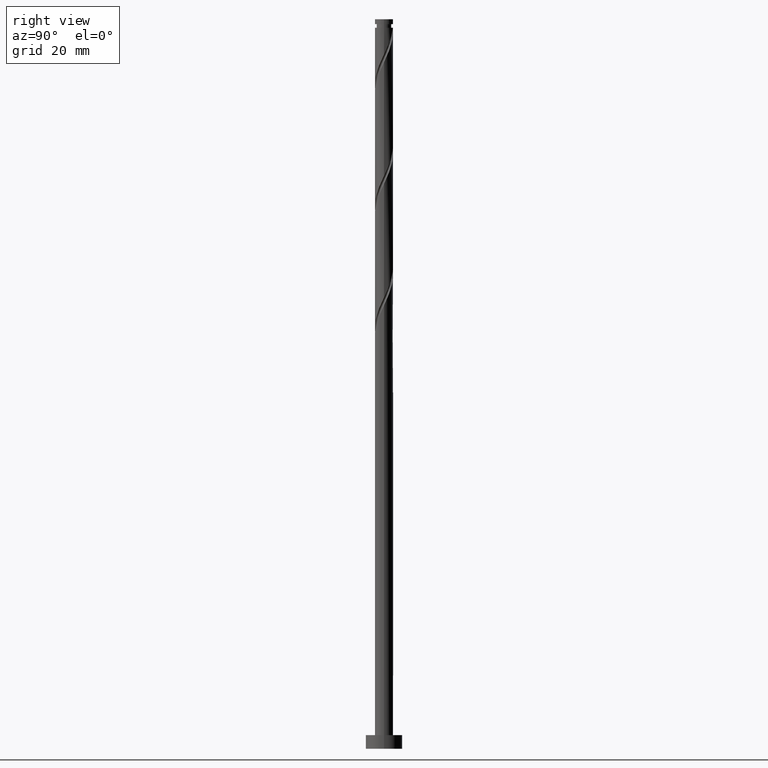
[diagram: clean part render]
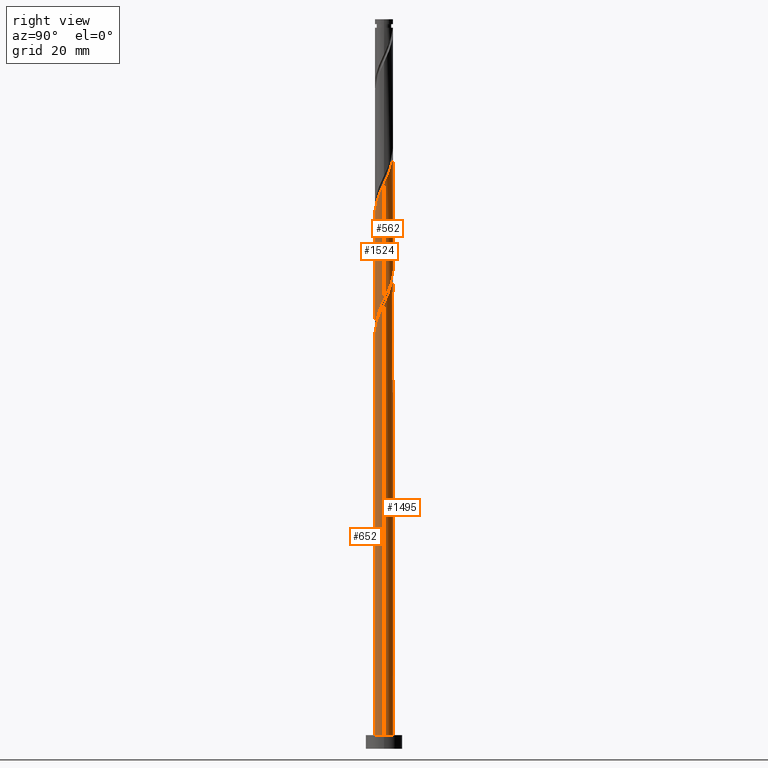
[diagram: same view with one multi-face feature highlighted, each face labeled with its STEP entity id]
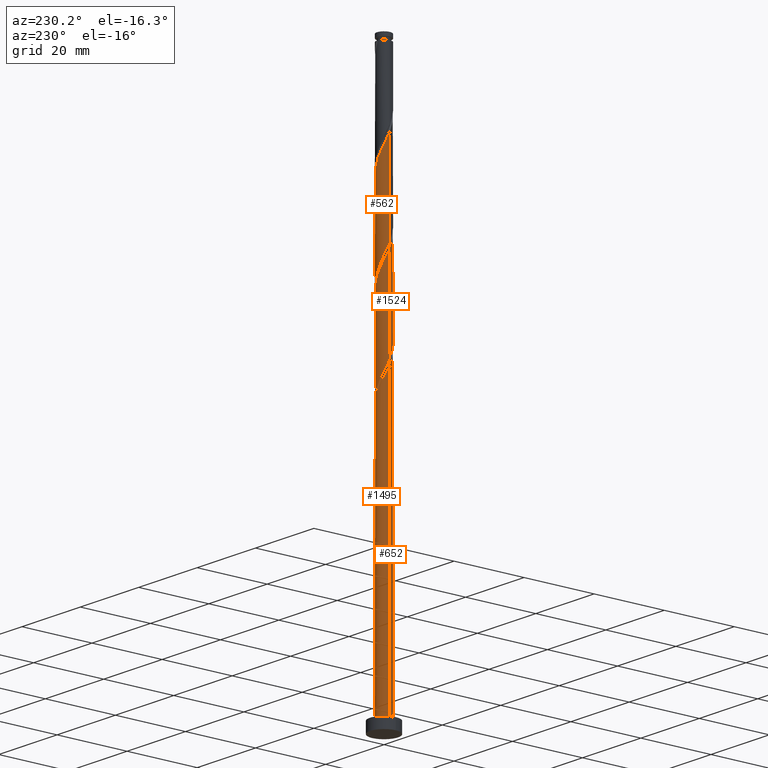
[diagram: same view with one multi-face feature highlighted, each face labeled with its STEP entity id]
A machine part, right view. The highlighted faces form ONE feature: a constant-radius fillet chain: 4 tangent blend faces with common blend radius 2 mm. The faces share edges in the B-rep.
A second angle (auxiliary view) of the same feature is appended — it is thin or edge-on in the first view.
Their STEP definitions:
[1] entity #652 (Cylinder):
#56 = CIRCLE ( 'NONE', #85, 2.000000000000000000 ) ;
#62 = CARTESIAN_POINT ( 'NONE',  ( -1.786663747202085428, -0.9436744384215550729, 85.99205870799292484 ) ) ;
#78 = CARTESIAN_POINT ( 'NONE',  ( -0.1703224295138030253, -1.992734370156877821, 90.23448295041721678 ) ) ;
#81 = ORIENTED_EDGE ( 'NONE', *, *, #115, .F. ) ;
#85 = AXIS2_PLACEMENT_3D ( 'NONE', #682, #354, #702 ) ;
#86 = CARTESIAN_POINT ( 'NONE',  ( 1.741900447066340618, -0.9827425057002959763, 95.08296779890204675 ) ) ;
#115 = EDGE_CURVE ( 'NONE', #834, #524, #1505, .T. ) ;
#150 = VECTOR ( 'NONE', #1386, 1000.000000000000000 ) ;
#223 = CARTESIAN_POINT ( 'NONE',  ( -1.220637884402356654, -1.584311571365225824, 87.81024052617476627 ) ) ;
#299 = VECTOR ( 'NONE', #1489, 1000.000000000000000 ) ;
#332 = AXIS2_PLACEMENT_3D ( 'NONE', #883, #1662, #516 ) ;
#354 = DIRECTION ( 'NONE',  ( 0.000000000000000000, 0.000000000000000000, 1.000000000000000000 ) ) ;
#398 = CARTESIAN_POINT ( 'NONE',  ( -2.000000000000000000, 0.000000000000000000, 3.000000000000000000 ) ) ;
#477 = CARTESIAN_POINT ( 'NONE',  ( -0.4568343776401065925, -1.968245701812304516, 89.62842234435655087 ) ) ;
#516 = DIRECTION ( 'NONE',  ( -1.000000000000000000, 0.000000000000000000, 0.000000000000000000 ) ) ;
#524 = VERTEX_POINT ( 'NONE', #575 ) ;
#565 = CARTESIAN_POINT ( 'NONE',  ( 2.000000000000003997, -0.2290578547702442069, 96.77785639693288999 ) ) ;
#575 = CARTESIAN_POINT ( 'NONE',  ( 2.000000000000000000, 2.449293598294706414E-16, 3.000000000000000000 ) ) ;
#581 = CARTESIAN_POINT ( 'NONE',  ( 0.3979949748426483414, -1.960000000000003517, 91.44660416253840651 ) ) ;
#588 = CARTESIAN_POINT ( 'NONE',  ( 1.948211798543803663, -0.4521844623765088889, 96.29508901102325069 ) ) ;
#652 = ADVANCED_FACE ( 'NONE', ( #1021 ), #1137, .T. ) ;
#682 = CARTESIAN_POINT ( 'NONE',  ( 0.000000000000000000, 0.000000000000000000, 3.000000000000000000 ) ) ;
#692 = CARTESIAN_POINT ( 'NONE',  ( -0.9928482695149692949, -1.759812803970230322, 88.41630113223534693 ) ) ;
#702 = DIRECTION ( 'NONE',  ( 1.000000000000000000, 0.000000000000000000, 0.000000000000000000 ) ) ;
#712 = CARTESIAN_POINT ( 'NONE',  ( 1.188337955536409529, -1.634179211325361702, 93.26478598072021953 ) ) ;
#778 = CARTESIAN_POINT ( 'NONE',  ( -1.883409435608319749, -0.6728810428757548978, 85.38599810193234418 ) ) ;
#834 = VERTEX_POINT ( 'NONE', #1186 ) ;
#841 = CARTESIAN_POINT ( 'NONE',  ( 0.1161895186125003476, -2.017223038501451349, 90.84054355647778323 ) ) ;
#847 = CARTESIAN_POINT ( 'NONE',  ( 0.6798004310727963073, -1.902776961498555464, 92.05266476859904401 ) ) ;
#882 = ORIENTED_EDGE ( 'NONE', *, *, #1082, .T. ) ;
#883 = CARTESIAN_POINT ( 'NONE',  ( 0.000000000000000000, 0.000000000000000000, 160.0000000000000000 ) ) ;
#976 = CARTESIAN_POINT ( 'NONE',  ( 1.600603406160406639, -1.233189980288575738, 94.47690719284145189 ) ) ;
#977 =( BOUNDED_CURVE ( )  B_SPLINE_CURVE ( 2, ( #1029, #1285, #1545, #1537, #778, #62, #1361, #1345, #223, #692, #1618, #477, #78, #841, #581, #847, #1199, #712, #1587, #976, #86, #983, #588, #565, #1334 ),
 .UNSPECIFIED., .F., .T. ) 
 B_SPLINE_CURVE_WITH_KNOTS ( ( 3, 2, 2, 2, 2, 2, 2, 2, 2, 2, 2, 2, 3 ),
 ( 0.05452521624175128701, 0.05681818181818176772, 0.06818181818181823228, 0.07954545454545458583, 0.09090909090909093937, 0.1022727272727272929, 0.1136363636363636465, 0.1250000000000000000, 0.1363636363636363535, 0.1477272727272727071, 0.1590909090909090606, 0.1704545454545454142, 0.1795252162417513841 ),
 .UNSPECIFIED. ) 
 CURVE ( )  GEOMETRIC_REPRESENTATION_ITEM ( )  RATIONAL_B_SPLINE_CURVE ( ( 0.9061101570135694505, 0.9072237824201516698, 0.9090909090909291557, 0.8998376744372313940, 0.9090909090909291557, 0.8998376744372313940, 0.9090909090909291557, 0.8998376744372313940, 0.9090909090909291557, 0.8998376744372313940, 0.9090909090909291557, 0.8998376744372313940, 0.9090909090909291557, 0.8998376744372313940, 0.9090909090909291557, 0.8998376744372313940, 0.9090909090909291557, 0.8998376744372313940, 0.9090909090909291557, 0.8998376744372313940, 0.9090909090909291557, 0.8998376744372313940, 0.9090909090909291557, 0.9017048011080087688, 0.9061101570135696726 ) ) 
 REPRESENTATION_ITEM ( '' )  );
#983 = CARTESIAN_POINT ( 'NONE',  ( 1.883197487972274375, -0.7322950311120153266, 95.68902840496264162 ) ) ;
#1002 = EDGE_CURVE ( 'NONE', #1022, #834, #977, .T. ) ;
#1021 = FACE_OUTER_BOUND ( 'NONE', #1119, .T. ) ;
#1022 = VERTEX_POINT ( 'NONE', #1231 ) ;
#1029 = CARTESIAN_POINT ( 'NONE',  ( -2.000000000000003553, -1.271329759797182417E-15, 83.93048301657087507 ) ) ;
#1082 = EDGE_CURVE ( 'NONE', #1316, #524, #56, .T. ) ;
#1100 = CARTESIAN_POINT ( 'NONE',  ( -2.000000000000000000, 0.000000000000000000, 160.0000000000000000 ) ) ;
#1102 = EDGE_CURVE ( 'NONE', #1022, #1316, #1627, .T. ) ;
#1119 = EDGE_LOOP ( 'NONE', ( #81, #1393, #1370, #882 ) ) ;
#1121 = CARTESIAN_POINT ( 'NONE',  ( 2.000000000000000000, 2.449293598294706414E-16, 160.0000000000000000 ) ) ;
#1137 = CYLINDRICAL_SURFACE ( 'NONE', #332, 2.000000000000000000 ) ;
#1186 = CARTESIAN_POINT ( 'NONE',  ( 2.000000000000003553, 1.181588835576204861E-15, 97.26381634990418945 ) ) ;
#1199 = CARTESIAN_POINT ( 'NONE',  ( 0.9340691933046022521, -1.768478086411958472, 92.65872537465965308 ) ) ;
#1231 = CARTESIAN_POINT ( 'NONE',  ( -2.000000000000003553, -1.271329759797182417E-15, 83.93048301657087507 ) ) ;
#1285 = CARTESIAN_POINT ( 'NONE',  ( -2.000000000000003553, -0.05755105304764444180, 84.05258102128908604 ) ) ;
#1316 = VERTEX_POINT ( 'NONE', #398 ) ;
#1334 = CARTESIAN_POINT ( 'NONE',  ( 2.000000000000003553, 1.181588835576204861E-15, 97.26381634990418945 ) ) ;
#1345 = CARTESIAN_POINT ( 'NONE',  ( -1.448427499289743903, -1.408810338760221992, 87.20417992011415720 ) ) ;
#1361 = CARTESIAN_POINT ( 'NONE',  ( -1.617545623245915110, -1.176242388590888366, 86.59811931405354812 ) ) ;
#1370 = ORIENTED_EDGE ( 'NONE', *, *, #1102, .T. ) ;
#1386 = DIRECTION ( 'NONE',  ( -0.000000000000000000, -0.000000000000000000, -1.000000000000000000 ) ) ;
#1393 = ORIENTED_EDGE ( 'NONE', *, *, #1002, .F. ) ;
#1489 = DIRECTION ( 'NONE',  ( -0.000000000000000000, -0.000000000000000000, -1.000000000000000000 ) ) ;
#1505 = LINE ( 'NONE', #1121, #150 ) ;
#1537 = CARTESIAN_POINT ( 'NONE',  ( -1.980155124014554291, -0.4020876473299553888, 84.77993749587173511 ) ) ;
#1545 = CARTESIAN_POINT ( 'NONE',  ( -1.996690616564943399, -0.1150068768444766354, 84.17387688981115446 ) ) ;
#1587 = CARTESIAN_POINT ( 'NONE',  ( 1.394470680848408417, -1.433684595806967943, 93.87084658678084281 ) ) ;
#1618 = CARTESIAN_POINT ( 'NONE',  ( -0.7248413235775381658, -1.864029252891266752, 89.02236173829597021 ) ) ;
#1627 = LINE ( 'NONE', #1100, #299 ) ;
#1662 = DIRECTION ( 'NONE',  ( -0.000000000000000000, -0.000000000000000000, -1.000000000000000000 ) ) ;
[2] entity #1495 (Cylinder):
#10 = ORIENTED_EDGE ( 'NONE', *, *, #914, .T. ) ;
#18 = CARTESIAN_POINT ( 'NONE',  ( 1.220637884402356654, 1.584311571365226490, 101.1435738595080949 ) ) ;
#42 = VERTEX_POINT ( 'NONE', #1114 ) ;
#115 = EDGE_CURVE ( 'NONE', #834, #524, #1505, .T. ) ;
#136 = CARTESIAN_POINT ( 'NONE',  ( -1.980155124014550738, 0.4020876473299552223, 84.77993749587173511 ) ) ;
#150 = VECTOR ( 'NONE', #1386, 1000.000000000000000 ) ;
#151 = CARTESIAN_POINT ( 'NONE',  ( -0.9340691933046029183, 1.768478086411958250, 105.9920587079929533 ) ) ;
#177 = CARTESIAN_POINT ( 'NONE',  ( -1.188337955536409529, 1.634179211325361702, 79.93145264738686251 ) ) ;
#180 = CARTESIAN_POINT ( 'NONE',  ( -0.3979949748426481193, 1.960000000000003517, 104.7799374958717635 ) ) ;
#201 = EDGE_CURVE ( 'NONE', #1649, #985, #1016, .T. ) ;
#209 = ORIENTED_EDGE ( 'NONE', *, *, #115, .T. ) ;
#275 = CARTESIAN_POINT ( 'NONE',  ( 0.000000000000000000, 0.000000000000000000, 3.000000000000000000 ) ) ;
#285 = CARTESIAN_POINT ( 'NONE',  ( 1.883409435608319749, 0.6728810428757547868, 98.71933143526568699 ) ) ;
#289 = CARTESIAN_POINT ( 'NONE',  ( -0.1161895186125000284, 2.017223038501451349, 104.1738768898111687 ) ) ;
#297 = CARTESIAN_POINT ( 'NONE',  ( -1.394470680848408417, 1.433684595806967943, 107.2041799201141856 ) ) ;
#299 = VECTOR ( 'NONE', #1489, 1000.000000000000000 ) ;
#304 = DIRECTION ( 'NONE',  ( -0.000000000000000000, -0.000000000000000000, -1.000000000000000000 ) ) ;
#314 = CARTESIAN_POINT ( 'NONE',  ( -1.741900447066340840, 0.9827425057002956432, 81.74963446556871816 ) ) ;
#317 = CARTESIAN_POINT ( 'NONE',  ( 1.996690616564943399, 0.1150068768444764550, 97.50721022314446884 ) ) ;
#345 = CARTESIAN_POINT ( 'NONE',  ( 0.3979949748426486189, 1.959999999999999964, 78.11327082920506371 ) ) ;
#373 = CARTESIAN_POINT ( 'NONE',  ( 0.1161895186125005142, 2.017223038501447796, 78.71933143526567278 ) ) ;
#378 = CARTESIAN_POINT ( 'NONE',  ( -0.9928482695149674075, 1.759812803970227657, 81.14357385950808066 ) ) ;
#398 = CARTESIAN_POINT ( 'NONE',  ( -2.000000000000000000, 0.000000000000000000, 3.000000000000000000 ) ) ;
#400 = CARTESIAN_POINT ( 'NONE',  ( -0.7248413235775363894, 1.864029252891264754, 80.53751325344750001 ) ) ;
#422 = CARTESIAN_POINT ( 'NONE',  ( 1.980155124014554291, 0.4020876473299551113, 98.11327082920509213 ) ) ;
#426 = DIRECTION ( 'NONE',  ( -1.000000000000000000, 0.000000000000000000, 0.000000000000000000 ) ) ;
#434 = DIRECTION ( 'NONE',  ( 0.000000000000000000, -0.000000000000000000, -1.000000000000000000 ) ) ;
#445 = CARTESIAN_POINT ( 'NONE',  ( -1.600603406160406639, 1.233189980288575516, 107.8102405261747663 ) ) ;
#462 = EDGE_CURVE ( 'NONE', #834, #1649, #1601, .T. ) ;
#464 = CIRCLE ( 'NONE', #1012, 2.000000000000000000 ) ;
#478 = CARTESIAN_POINT ( 'NONE',  ( -2.000000000000000000, 0.000000000000000000, 160.0000000000000000 ) ) ;
#488 = CARTESIAN_POINT ( 'NONE',  ( -2.000000000000000000, 0.05755105304764594060, 85.50729397045442681 ) ) ;
#504 = EDGE_LOOP ( 'NONE', ( #920, #209, #752, #1004, #783, #10, #630, #1144 ) ) ;
#521 = CARTESIAN_POINT ( 'NONE',  ( -1.948211798543803219, 0.4521844623765091109, 82.96175567768992209 ) ) ;
#524 = VERTEX_POINT ( 'NONE', #575 ) ;
#531 = AXIS2_PLACEMENT_3D ( 'NONE', #1551, #304, #896 ) ;
#532 = CARTESIAN_POINT ( 'NONE',  ( -1.883197487972274375, 0.7322950311120156597, 109.0223617382959986 ) ) ;
#559 = CARTESIAN_POINT ( 'NONE',  ( 0.7248413235775374996, 1.864029252891266975, 102.3556950716293414 ) ) ;
#575 = CARTESIAN_POINT ( 'NONE',  ( 2.000000000000000000, 2.449293598294706414E-16, 3.000000000000000000 ) ) ;
#585 = CIRCLE ( 'NONE', #795, 2.000000000000000000 ) ;
#627 =( BOUNDED_CURVE ( )  B_SPLINE_CURVE ( 2, ( #1520, #488, #1260, #136, #1142, #1528, #1504, #1120, #1404, #378, #400, #744, #1653, #373, #1378 ),
 .UNSPECIFIED., .F., .T. ) 
 B_SPLINE_CURVE_WITH_KNOTS ( ( 3, 2, 2, 2, 2, 2, 2, 3 ),
 ( 0.9295252162417513286, 0.9318181818181817677, 0.9431818181818182323, 0.9545454545454545858, 0.9659090909090909394, 0.9772727272727272929, 0.9886363636363636465, 1.000000000000000000 ),
 .UNSPECIFIED. ) 
 CURVE ( )  GEOMETRIC_REPRESENTATION_ITEM ( )  RATIONAL_B_SPLINE_CURVE ( ( 0.9061101570135631222, 0.9072237824201453416, 0.9090909090909228274, 0.8998376744372251768, 0.9090909090909228274, 0.8998376744372251768, 0.9090909090909228274, 0.8998376744372251768, 0.9090909090909228274, 0.8998376744372251768, 0.9090909090909228274, 0.8998376744372251768, 0.9090909090909228274, 0.8998376744372251768, 0.9090909090909228274 ) ) 
 REPRESENTATION_ITEM ( '' )  );
#630 = ORIENTED_EDGE ( 'NONE', *, *, #728, .F. ) ;
#641 = CARTESIAN_POINT ( 'NONE',  ( -2.000000000000003553, 0.2290578547702467049, 83.44452306359956140 ) ) ;
#649 = CARTESIAN_POINT ( 'NONE',  ( -2.000000000000003553, -1.271329759797182417E-15, 110.5971496832375038 ) ) ;
#658 = CARTESIAN_POINT ( 'NONE',  ( 2.000000000000003109, 0.05755105304764673163, 97.38591435462238621 ) ) ;
#676 = CARTESIAN_POINT ( 'NONE',  ( -0.3979949748426480638, 1.960000000000003517, 78.11327082920506371 ) ) ;
#698 = EDGE_CURVE ( 'NONE', #524, #1316, #464, .T. ) ;
#728 = EDGE_CURVE ( 'NONE', #985, #1287, #627, .T. ) ;
#744 = CARTESIAN_POINT ( 'NONE',  ( -0.4568343776401056489, 1.968245701812301407, 79.93145264738686251 ) ) ;
#752 = ORIENTED_EDGE ( 'NONE', *, *, #698, .T. ) ;
#761 = DIRECTION ( 'NONE',  ( 0.000000000000000000, 0.000000000000000000, 1.000000000000000000 ) ) ;
#769 = DIRECTION ( 'NONE',  ( 1.000000000000000000, 0.000000000000000000, 0.000000000000000000 ) ) ;
#783 = ORIENTED_EDGE ( 'NONE', *, *, #980, .F. ) ;
#787 = CARTESIAN_POINT ( 'NONE',  ( -2.000000000000003553, -1.271329759797182417E-15, 110.5971496832375180 ) ) ;
#795 = AXIS2_PLACEMENT_3D ( 'NONE', #1447, #434, #426 ) ;
#797 = CARTESIAN_POINT ( 'NONE',  ( 2.000000000000003553, 1.181588835576204861E-15, 97.26381634990418945 ) ) ;
#799 =( BOUNDED_CURVE ( )  B_SPLINE_CURVE ( 2, ( #676, #1163, #804, #177, #1577, #946, #314, #1322, #521, #641, #908 ),
 .UNSPECIFIED., .F., .T. ) 
 B_SPLINE_CURVE_WITH_KNOTS ( ( 3, 2, 2, 2, 2, 3 ),
 ( 0.000000000000000000, 0.01136363636363635528, 0.02272727272727271056, 0.03409090909090906063, 0.04545454545454542111, 0.05452521624175128007 ),
 .UNSPECIFIED. ) 
 CURVE ( )  GEOMETRIC_REPRESENTATION_ITEM ( )  RATIONAL_B_SPLINE_CURVE ( ( 0.9090909090909291557, 0.8998376744372313940, 0.9090909090909291557, 0.8998376744372313940, 0.9090909090909291557, 0.8998376744372313940, 0.9090909090909291557, 0.8998376744372313940, 0.9090909090909291557, 0.9017048011080088799, 0.9061101570135694505 ) ) 
 REPRESENTATION_ITEM ( '' )  );
#804 = CARTESIAN_POINT ( 'NONE',  ( -0.9340691933046029183, 1.768478086411958250, 79.32539204132628186 ) ) ;
#808 = CARTESIAN_POINT ( 'NONE',  ( -0.6798004310727966404, 1.902776961498555020, 105.3859981019323726 ) ) ;
#818 = CARTESIAN_POINT ( 'NONE',  ( -2.000000000000003997, 0.2290578547702443457, 110.1111897302662186 ) ) ;
#834 = VERTEX_POINT ( 'NONE', #1186 ) ;
#896 = DIRECTION ( 'NONE',  ( -1.000000000000000000, 0.000000000000000000, 0.000000000000000000 ) ) ;
#908 = CARTESIAN_POINT ( 'NONE',  ( -2.000000000000003553, -1.271329759797182417E-15, 83.93048301657087507 ) ) ;
#914 = EDGE_CURVE ( 'NONE', #42, #1287, #585, .T. ) ;
#920 = ORIENTED_EDGE ( 'NONE', *, *, #462, .F. ) ;
#927 = CARTESIAN_POINT ( 'NONE',  ( 1.448427499289744791, 1.408810338760221326, 100.5375132534475142 ) ) ;
#946 = CARTESIAN_POINT ( 'NONE',  ( -1.600603406160406639, 1.233189980288575516, 81.14357385950812329 ) ) ;
#980 = EDGE_CURVE ( 'NONE', #42, #1022, #799, .T. ) ;
#985 = VERTEX_POINT ( 'NONE', #1155 ) ;
#1004 = ORIENTED_EDGE ( 'NONE', *, *, #1102, .F. ) ;
#1012 = AXIS2_PLACEMENT_3D ( 'NONE', #275, #761, #769 ) ;
#1016 = LINE ( 'NONE', #478, #1109 ) ;
#1022 = VERTEX_POINT ( 'NONE', #1231 ) ;
#1070 = CARTESIAN_POINT ( 'NONE',  ( -1.948211798543803219, 0.4521844623765091109, 109.6284223443565935 ) ) ;
#1100 = CARTESIAN_POINT ( 'NONE',  ( -2.000000000000000000, 0.000000000000000000, 160.0000000000000000 ) ) ;
#1102 = EDGE_CURVE ( 'NONE', #1022, #1316, #1627, .T. ) ;
#1109 = VECTOR ( 'NONE', #1450, 1000.000000000000000 ) ;
#1114 = CARTESIAN_POINT ( 'NONE',  ( -0.3979949748426480638, 1.960000000000003517, 78.11327082920506371 ) ) ;
#1120 = CARTESIAN_POINT ( 'NONE',  ( -1.448427499289741460, 1.408810338760220215, 82.35569507162931302 ) ) ;
#1121 = CARTESIAN_POINT ( 'NONE',  ( 2.000000000000000000, 2.449293598294706414E-16, 160.0000000000000000 ) ) ;
#1142 = CARTESIAN_POINT ( 'NONE',  ( -1.883409435608316418, 0.6728810428757544537, 84.17387688981112603 ) ) ;
#1144 = ORIENTED_EDGE ( 'NONE', *, *, #201, .F. ) ;
#1155 = CARTESIAN_POINT ( 'NONE',  ( -2.000000000000000000, 1.832210536178305115E-15, 85.62939197517262357 ) ) ;
#1163 = CARTESIAN_POINT ( 'NONE',  ( -0.6798004310727966404, 1.902776961498555020, 78.71933143526568699 ) ) ;
#1186 = CARTESIAN_POINT ( 'NONE',  ( 2.000000000000003553, 1.181588835576204861E-15, 97.26381634990418945 ) ) ;
#1231 = CARTESIAN_POINT ( 'NONE',  ( -2.000000000000003553, -1.271329759797182417E-15, 83.93048301657087507 ) ) ;
#1260 = CARTESIAN_POINT ( 'NONE',  ( -1.996690616564939846, 0.1150068768444770378, 85.38599810193235840 ) ) ;
#1286 = CARTESIAN_POINT ( 'NONE',  ( 0.9928482695149684067, 1.759812803970230766, 101.7496344655687182 ) ) ;
#1287 = VERTEX_POINT ( 'NONE', #345 ) ;
#1303 = CARTESIAN_POINT ( 'NONE',  ( 1.617545623245915332, 1.176242388590887922, 99.93145264738689093 ) ) ;
#1316 = VERTEX_POINT ( 'NONE', #398 ) ;
#1322 = CARTESIAN_POINT ( 'NONE',  ( -1.883197487972274375, 0.7322950311120156597, 82.35569507162932723 ) ) ;
#1378 = CARTESIAN_POINT ( 'NONE',  ( 0.3979949748426486189, 1.959999999999999964, 78.11327082920506371 ) ) ;
#1386 = DIRECTION ( 'NONE',  ( -0.000000000000000000, -0.000000000000000000, -1.000000000000000000 ) ) ;
#1403 = CYLINDRICAL_SURFACE ( 'NONE', #531, 2.000000000000000000 ) ;
#1404 = CARTESIAN_POINT ( 'NONE',  ( -1.220637884402354434, 1.584311571365224047, 81.74963446556870394 ) ) ;
#1421 = CARTESIAN_POINT ( 'NONE',  ( -1.741900447066340840, 0.9827425057002956432, 108.4163011322353611 ) ) ;
#1432 = CARTESIAN_POINT ( 'NONE',  ( 0.4568343776401068701, 1.968245701812304072, 102.9617556776899505 ) ) ;
#1442 = CARTESIAN_POINT ( 'NONE',  ( 1.786663747202085650, 0.9436744384215544068, 99.32539204132629607 ) ) ;
#1447 = CARTESIAN_POINT ( 'NONE',  ( 0.000000000000000000, 0.000000000000000000, 78.11327082920506371 ) ) ;
#1450 = DIRECTION ( 'NONE',  ( -0.000000000000000000, -0.000000000000000000, -1.000000000000000000 ) ) ;
#1489 = DIRECTION ( 'NONE',  ( -0.000000000000000000, -0.000000000000000000, -1.000000000000000000 ) ) ;
#1495 = ADVANCED_FACE ( 'NONE', ( #1575 ), #1403, .T. ) ;
#1504 = CARTESIAN_POINT ( 'NONE',  ( -1.617545623245911779, 1.176242388590886812, 82.96175567768990788 ) ) ;
#1505 = LINE ( 'NONE', #1121, #150 ) ;
#1520 = CARTESIAN_POINT ( 'NONE',  ( -2.000000000000000000, 1.832210536178305115E-15, 85.62939197517262357 ) ) ;
#1528 = CARTESIAN_POINT ( 'NONE',  ( -1.786663747202081876, 0.9436744384215539627, 83.56781628375054538 ) ) ;
#1547 = CARTESIAN_POINT ( 'NONE',  ( 0.1703224295138033029, 1.992734370156877821, 103.5678162837505312 ) ) ;
#1551 = CARTESIAN_POINT ( 'NONE',  ( 0.000000000000000000, 0.000000000000000000, 160.0000000000000000 ) ) ;
#1575 = FACE_OUTER_BOUND ( 'NONE', #504, .T. ) ;
#1577 = CARTESIAN_POINT ( 'NONE',  ( -1.394470680848408417, 1.433684595806967943, 80.53751325344748579 ) ) ;
#1580 = CARTESIAN_POINT ( 'NONE',  ( -1.188337955536409529, 1.634179211325361702, 106.5981193140535623 ) ) ;
#1601 =( BOUNDED_CURVE ( )  B_SPLINE_CURVE ( 2, ( #797, #658, #317, #422, #285, #1442, #1303, #927, #18, #1286, #559, #1432, #1547, #289, #180, #808, #151, #1580, #297, #445, #1421, #532, #1070, #818, #787 ),
 .UNSPECIFIED., .F., .T. ) 
 B_SPLINE_CURVE_WITH_KNOTS ( ( 3, 2, 2, 2, 2, 2, 2, 2, 2, 2, 2, 2, 3 ),
 ( 0.1795252162417513841, 0.1818181818181817677, 0.1931818181818182323, 0.2045454545454545858, 0.2159090909090909394, 0.2272727272727272929, 0.2386363636363636465, 0.2500000000000000000, 0.2613636363636363535, 0.2727272727272727071, 0.2840909090909090606, 0.2954545454545454142, 0.3045252162417513841 ),
 .UNSPECIFIED. ) 
 CURVE ( )  GEOMETRIC_REPRESENTATION_ITEM ( )  RATIONAL_B_SPLINE_CURVE ( ( 0.9061101570135696726, 0.9072237824201517808, 0.9090909090909291557, 0.8998376744372313940, 0.9090909090909291557, 0.8998376744372313940, 0.9090909090909291557, 0.8998376744372313940, 0.9090909090909291557, 0.8998376744372313940, 0.9090909090909291557, 0.8998376744372313940, 0.9090909090909291557, 0.8998376744372313940, 0.9090909090909291557, 0.8998376744372313940, 0.9090909090909291557, 0.8998376744372313940, 0.9090909090909291557, 0.8998376744372313940, 0.9090909090909291557, 0.8998376744372313940, 0.9090909090909291557, 0.9017048011080087688, 0.9061101570135696726 ) ) 
 REPRESENTATION_ITEM ( '' )  );
#1627 = LINE ( 'NONE', #1100, #299 ) ;
#1649 = VERTEX_POINT ( 'NONE', #649 ) ;
#1653 = CARTESIAN_POINT ( 'NONE',  ( -0.1703224295138024424, 1.992734370156874713, 79.32539204132629607 ) ) ;
[3] entity #1524 (Cylinder):
#79 = CARTESIAN_POINT ( 'NONE',  ( -1.188337955536407531, -1.634179211325358594, 89.62842234435659350 ) ) ;
#88 = CARTESIAN_POINT ( 'NONE',  ( 0.9340691933046022521, -1.768478086411958472, 119.3253920413262961 ) ) ;
#96 = CARTESIAN_POINT ( 'NONE',  ( -0.9928482695149692949, -1.759812803970230322, 115.0829677989020468 ) ) ;
#103 = CARTESIAN_POINT ( 'NONE',  ( -0.3979949748426485634, -1.959999999999999964, 91.44660416253843493 ) ) ;
#152 = EDGE_LOOP ( 'NONE', ( #429, #1340, #1567, #754 ) ) ;
#169 = CARTESIAN_POINT ( 'NONE',  ( 1.996690616564939402, -0.1150068768444773015, 98.71933143526570120 ) ) ;
#189 = CARTESIAN_POINT ( 'NONE',  ( 1.999999999999999112, -0.05755105304764908392, 98.84062730378772699 ) ) ;
#201 = EDGE_CURVE ( 'NONE', #1649, #985, #1016, .T. ) ;
#207 = CARTESIAN_POINT ( 'NONE',  ( 0.3979949748426483414, -1.960000000000003517, 118.1132708292051063 ) ) ;
#215 = CARTESIAN_POINT ( 'NONE',  ( -2.000000000000003109, -0.05755105304764687041, 110.7192476879557290 ) ) ;
#232 = CARTESIAN_POINT ( 'NONE',  ( -0.9340691933046016970, -1.768478086411955141, 90.23448295041720257 ) ) ;
#330 = CARTESIAN_POINT ( 'NONE',  ( -1.220637884402356654, -1.584311571365225824, 114.4769071928414519 ) ) ;
#338 = CARTESIAN_POINT ( 'NONE',  ( -1.617545623245915110, -1.176242388590888366, 113.2647859807202195 ) ) ;
#356 = CARTESIAN_POINT ( 'NONE',  ( 1.741900447066340618, -0.9827425057002959763, 121.7496344655687182 ) ) ;
#366 = CARTESIAN_POINT ( 'NONE',  ( -0.7248413235775381658, -1.864029252891266752, 115.6890284049627127 ) ) ;
#424 = DIRECTION ( 'NONE',  ( -0.000000000000000000, -0.000000000000000000, -1.000000000000000000 ) ) ;
#429 = ORIENTED_EDGE ( 'NONE', *, *, #1249, .F. ) ;
#436 = CARTESIAN_POINT ( 'NONE',  ( 1.220637884402353990, -1.584311571365224047, 95.08296779890204675 ) ) ;
#437 = VERTEX_POINT ( 'NONE', #1556 ) ;
#460 = LINE ( 'NONE', #962, #715 ) ;
#463 = CARTESIAN_POINT ( 'NONE',  ( -2.000000000000003553, -1.271329759797182417E-15, 110.5971496832375180 ) ) ;
#478 = CARTESIAN_POINT ( 'NONE',  ( -2.000000000000000000, 0.000000000000000000, 160.0000000000000000 ) ) ;
#510 = EDGE_CURVE ( 'NONE', #437, #985, #858, .T. ) ;
#538 = EDGE_CURVE ( 'NONE', #1649, #635, #1478, .T. ) ;
#549 = CARTESIAN_POINT ( 'NONE',  ( 1.980155124014550738, -0.4020876473299555554, 98.11327082920507792 ) ) ;
#568 = CARTESIAN_POINT ( 'NONE',  ( 0.9928482695149669635, -1.759812803970227657, 94.47690719284145189 ) ) ;
#590 = CARTESIAN_POINT ( 'NONE',  ( 2.000000000000003553, 1.181588835576204861E-15, 123.9304830165708751 ) ) ;
#601 = CARTESIAN_POINT ( 'NONE',  ( 1.600603406160406639, -1.233189980288575738, 121.1435738595081091 ) ) ;
#628 = CARTESIAN_POINT ( 'NONE',  ( 2.000000000000003553, 1.181588835576204861E-15, 123.9304830165708751 ) ) ;
#635 = VERTEX_POINT ( 'NONE', #628 ) ;
#649 = CARTESIAN_POINT ( 'NONE',  ( -2.000000000000003553, -1.271329759797182417E-15, 110.5971496832375038 ) ) ;
#667 = CARTESIAN_POINT ( 'NONE',  ( 1.883409435608316418, -0.6728810428757546758, 97.50721022314446884 ) ) ;
#695 = CARTESIAN_POINT ( 'NONE',  ( 1.394470680848408417, -1.433684595806967943, 120.5375132534475142 ) ) ;
#703 = CARTESIAN_POINT ( 'NONE',  ( -1.394470680848406641, -1.433684595806966167, 89.02236173829597021 ) ) ;
#713 = CARTESIAN_POINT ( 'NONE',  ( -1.996690616564943399, -0.1150068768444766354, 110.8405435564777974 ) ) ;
#715 = VECTOR ( 'NONE', #831, 1000.000000000000000 ) ;
#729 = CARTESIAN_POINT ( 'NONE',  ( -2.000000000000000000, -0.2290578547702447065, 86.11535192814390882 ) ) ;
#754 = ORIENTED_EDGE ( 'NONE', *, *, #510, .F. ) ;
#785 = CARTESIAN_POINT ( 'NONE',  ( 0.000000000000000000, 0.000000000000000000, 160.0000000000000000 ) ) ;
#826 = CARTESIAN_POINT ( 'NONE',  ( -0.4568343776401065925, -1.968245701812304516, 116.2950890110232649 ) ) ;
#831 = DIRECTION ( 'NONE',  ( -0.000000000000000000, -0.000000000000000000, -1.000000000000000000 ) ) ;
#833 = CARTESIAN_POINT ( 'NONE',  ( -1.948211798543800555, -0.4521844623765077231, 86.59811931405354812 ) ) ;
#849 = CARTESIAN_POINT ( 'NONE',  ( 1.948211798543803663, -0.4521844623765088889, 122.9617556776899363 ) ) ;
#858 =( BOUNDED_CURVE ( )  B_SPLINE_CURVE ( 2, ( #1170, #189, #169, #549, #667, #1179, #1201, #1564, #436, #568, #1078, #972, #1339, #1086, #103, #1486, #232, #79, #703, #1217, #1240, #1355, #833, #729, #1480 ),
 .UNSPECIFIED., .F., .T. ) 
 B_SPLINE_CURVE_WITH_KNOTS ( ( 3, 2, 2, 2, 2, 2, 2, 2, 2, 2, 2, 2, 3 ),
 ( 0.8045252162417514397, 0.8068181818181817677, 0.8181818181818182323, 0.8295454545454545858, 0.8409090909090909394, 0.8522727272727272929, 0.8636363636363636465, 0.8750000000000000000, 0.8863636363636363535, 0.8977272727272727071, 0.9090909090909090606, 0.9204545454545454142, 0.9295252162417513286 ),
 .UNSPECIFIED. ) 
 CURVE ( )  GEOMETRIC_REPRESENTATION_ITEM ( )  RATIONAL_B_SPLINE_CURVE ( ( 0.9061101570135633443, 0.9072237824201454526, 0.9090909090909228274, 0.8998376744372251768, 0.9090909090909228274, 0.8998376744372251768, 0.9090909090909228274, 0.8998376744372251768, 0.9090909090909228274, 0.8998376744372251768, 0.9090909090909228274, 0.8998376744372251768, 0.9090909090909228274, 0.8998376744372251768, 0.9090909090909228274, 0.8998376744372251768, 0.9090909090909228274, 0.8998376744372251768, 0.9090909090909228274, 0.8998376744372251768, 0.9090909090909228274, 0.8998376744372251768, 0.9090909090909228274, 0.9017048011080026626, 0.9061101570135631222 ) ) 
 REPRESENTATION_ITEM ( '' )  );
#860 = CARTESIAN_POINT ( 'NONE',  ( 0.1161895186125003476, -2.017223038501451349, 117.5072102231444831 ) ) ;
#962 = CARTESIAN_POINT ( 'NONE',  ( 2.000000000000000000, 2.449293598294706414E-16, 160.0000000000000000 ) ) ;
#964 = CARTESIAN_POINT ( 'NONE',  ( -1.883409435608319749, -0.6728810428757548978, 112.0526647685990156 ) ) ;
#972 = CARTESIAN_POINT ( 'NONE',  ( 0.4568343776401059819, -1.968245701812300963, 93.26478598072021953 ) ) ;
#985 = VERTEX_POINT ( 'NONE', #1155 ) ;
#1016 = LINE ( 'NONE', #478, #1109 ) ;
#1067 = AXIS2_PLACEMENT_3D ( 'NONE', #785, #424, #1289 ) ;
#1078 = CARTESIAN_POINT ( 'NONE',  ( 0.7248413235775363894, -1.864029252891264754, 93.87084658678084281 ) ) ;
#1086 = CARTESIAN_POINT ( 'NONE',  ( -0.1161895186125010554, -2.017223038501448240, 92.05266476859901559 ) ) ;
#1095 = CARTESIAN_POINT ( 'NONE',  ( 1.883197487972274375, -0.7322950311120153266, 122.3556950716292988 ) ) ;
#1109 = VECTOR ( 'NONE', #1450, 1000.000000000000000 ) ;
#1155 = CARTESIAN_POINT ( 'NONE',  ( -2.000000000000000000, 1.832210536178305115E-15, 85.62939197517262357 ) ) ;
#1170 = CARTESIAN_POINT ( 'NONE',  ( 2.000000000000000000, -2.221087874469210557E-15, 98.96272530850595217 ) ) ;
#1176 = CYLINDRICAL_SURFACE ( 'NONE', #1067, 2.000000000000000000 ) ;
#1179 = CARTESIAN_POINT ( 'NONE',  ( 1.786663747202081876, -0.9436744384215538517, 96.90114961708384556 ) ) ;
#1201 = CARTESIAN_POINT ( 'NONE',  ( 1.617545623245911779, -1.176242388590886589, 96.29508901102323648 ) ) ;
#1217 = CARTESIAN_POINT ( 'NONE',  ( -1.600603406160404640, -1.233189980288572629, 88.41630113223538956 ) ) ;
#1225 = CARTESIAN_POINT ( 'NONE',  ( 0.6798004310727963073, -1.902776961498555464, 118.7193314352656870 ) ) ;
#1240 = CARTESIAN_POINT ( 'NONE',  ( -1.741900447066338398, -0.9827425057002936448, 87.81024052617478048 ) ) ;
#1249 = EDGE_CURVE ( 'NONE', #635, #437, #460, .T. ) ;
#1289 = DIRECTION ( 'NONE',  ( -1.000000000000000000, 0.000000000000000000, 0.000000000000000000 ) ) ;
#1339 = CARTESIAN_POINT ( 'NONE',  ( 0.1703224295138019428, -1.992734370156874713, 92.65872537465959624 ) ) ;
#1340 = ORIENTED_EDGE ( 'NONE', *, *, #538, .F. ) ;
#1348 = CARTESIAN_POINT ( 'NONE',  ( -1.448427499289743903, -1.408810338760221992, 113.8708465867808286 ) ) ;
#1355 = CARTESIAN_POINT ( 'NONE',  ( -1.883197487972271711, -0.7322950311120139943, 87.20417992011419983 ) ) ;
#1371 = CARTESIAN_POINT ( 'NONE',  ( 1.188337955536409529, -1.634179211325361702, 119.9314526473869051 ) ) ;
#1450 = DIRECTION ( 'NONE',  ( -0.000000000000000000, -0.000000000000000000, -1.000000000000000000 ) ) ;
#1471 = CARTESIAN_POINT ( 'NONE',  ( -0.1703224295138030253, -1.992734370156877821, 116.9011496170838456 ) ) ;
#1478 =( BOUNDED_CURVE ( )  B_SPLINE_CURVE ( 2, ( #463, #215, #713, #1603, #964, #1589, #338, #1348, #330, #96, #366, #826, #1471, #860, #207, #1225, #88, #1371, #695, #601, #356, #1095, #849, #1613, #590 ),
 .UNSPECIFIED., .F., .T. ) 
 B_SPLINE_CURVE_WITH_KNOTS ( ( 3, 2, 2, 2, 2, 2, 2, 2, 2, 2, 2, 2, 3 ),
 ( 0.3045252162417513841, 0.3068181818181817677, 0.3181818181818182323, 0.3295454545454545858, 0.3409090909090909394, 0.3522727272727272929, 0.3636363636363636465, 0.3750000000000000000, 0.3863636363636363535, 0.3977272727272727071, 0.4090909090909090606, 0.4204545454545454142, 0.4295252162417513841 ),
 .UNSPECIFIED. ) 
 CURVE ( )  GEOMETRIC_REPRESENTATION_ITEM ( )  RATIONAL_B_SPLINE_CURVE ( ( 0.9061101570135696726, 0.9072237824201517808, 0.9090909090909291557, 0.8998376744372313940, 0.9090909090909291557, 0.8998376744372313940, 0.9090909090909291557, 0.8998376744372313940, 0.9090909090909291557, 0.8998376744372313940, 0.9090909090909291557, 0.8998376744372313940, 0.9090909090909291557, 0.8998376744372313940, 0.9090909090909291557, 0.8998376744372313940, 0.9090909090909291557, 0.8998376744372313940, 0.9090909090909291557, 0.8998376744372313940, 0.9090909090909291557, 0.8998376744372313940, 0.9090909090909291557, 0.9017048011080087688, 0.9061101570135696726 ) ) 
 REPRESENTATION_ITEM ( '' )  );
#1480 = CARTESIAN_POINT ( 'NONE',  ( -2.000000000000000000, 1.832210536178305115E-15, 85.62939197517262357 ) ) ;
#1486 = CARTESIAN_POINT ( 'NONE',  ( -0.6798004310727959743, -1.902776961498551689, 90.84054355647779744 ) ) ;
#1524 = ADVANCED_FACE ( 'NONE', ( #1560 ), #1176, .T. ) ;
#1556 = CARTESIAN_POINT ( 'NONE',  ( 2.000000000000000000, -2.221087874469210557E-15, 98.96272530850595217 ) ) ;
#1560 = FACE_OUTER_BOUND ( 'NONE', #152, .T. ) ;
#1564 = CARTESIAN_POINT ( 'NONE',  ( 1.448427499289742126, -1.408810338760219993, 95.68902840496265583 ) ) ;
#1567 = ORIENTED_EDGE ( 'NONE', *, *, #201, .T. ) ;
#1589 = CARTESIAN_POINT ( 'NONE',  ( -1.786663747202085428, -0.9436744384215550729, 112.6587253746596247 ) ) ;
#1603 = CARTESIAN_POINT ( 'NONE',  ( -1.980155124014554291, -0.4020876473299553888, 111.4466041625384065 ) ) ;
#1613 = CARTESIAN_POINT ( 'NONE',  ( 2.000000000000003997, -0.2290578547702442069, 123.4445230635996040 ) ) ;
#1649 = VERTEX_POINT ( 'NONE', #649 ) ;
[4] entity #562 (Cylinder):
#9 = CARTESIAN_POINT ( 'NONE',  ( 0.3979949748426486189, 1.959999999999999964, 104.7799374958717635 ) ) ;
#27 = CARTESIAN_POINT ( 'NONE',  ( -2.000000000000003553, -1.271329759797182220E-15, 137.2638163499042037 ) ) ;
#33 = DIRECTION ( 'NONE',  ( -0.000000000000000000, -0.000000000000000000, -1.000000000000000000 ) ) ;
#39 = CARTESIAN_POINT ( 'NONE',  ( -0.3979949748426481193, 1.960000000000003517, 131.4466041625384207 ) ) ;
#74 = CARTESIAN_POINT ( 'NONE',  ( 0.000000000000000000, 0.000000000000000000, 160.0000000000000000 ) ) ;
#91 = CARTESIAN_POINT ( 'NONE',  ( -1.980155124014550738, 0.4020876473299552223, 111.4466041625384207 ) ) ;
#104 = CARTESIAN_POINT ( 'NONE',  ( -1.996690616564939846, 0.1150068768444770378, 112.0526647685990014 ) ) ;
#140 = CARTESIAN_POINT ( 'NONE',  ( 1.220637884402356654, 1.584311571365226490, 127.8102405261747805 ) ) ;
#157 = CARTESIAN_POINT ( 'NONE',  ( -0.9340691933046029183, 1.768478086411958250, 132.6587253746596105 ) ) ;
#160 = ORIENTED_EDGE ( 'NONE', *, *, #1249, .T. ) ;
#218 = CARTESIAN_POINT ( 'NONE',  ( 1.883409435608319749, 0.6728810428757547868, 125.3859981019323584 ) ) ;
#225 = CYLINDRICAL_SURFACE ( 'NONE', #938, 2.000000000000000000 ) ;
#227 = CARTESIAN_POINT ( 'NONE',  ( 2.000000000000003109, 0.05755105304764673163, 124.0525810212890860 ) ) ;
#234 = CARTESIAN_POINT ( 'NONE',  ( -1.220637884402354434, 1.584311571365224047, 108.4163011322353753 ) ) ;
#244 = CARTESIAN_POINT ( 'NONE',  ( 1.980155124014554291, 0.4020876473299551113, 124.7799374958717635 ) ) ;
#253 = CARTESIAN_POINT ( 'NONE',  ( 1.948211798543800555, 0.4521844623765070570, 99.93145264738689093 ) ) ;
#284 = CARTESIAN_POINT ( 'NONE',  ( -2.000000000000000000, 0.000000000000000000, 160.0000000000000000 ) ) ;
#351 = EDGE_CURVE ( 'NONE', #780, #437, #473, .T. ) ;
#421 = EDGE_CURVE ( 'NONE', #635, #1104, #1311, .T. ) ;
#437 = VERTEX_POINT ( 'NONE', #1556 ) ;
#460 = LINE ( 'NONE', #962, #715 ) ;
#473 =( BOUNDED_CURVE ( )  B_SPLINE_CURVE ( 2, ( #604, #1509, #104, #91, #480, #1389, #1113, #733, #234, #1382, #1630, #1131, #987, #1251, #9, #615, #1123, #1493, #981, #1637, #490, #592, #253, #749, #597 ),
 .UNSPECIFIED., .F., .T. ) 
 B_SPLINE_CURVE_WITH_KNOTS ( ( 3, 2, 2, 2, 2, 2, 2, 2, 2, 2, 2, 2, 3 ),
 ( 0.6795252162417513286, 0.6818181818181817677, 0.6931818181818182323, 0.7045454545454545858, 0.7159090909090909394, 0.7272727272727272929, 0.7386363636363636465, 0.7500000000000000000, 0.7613636363636363535, 0.7727272727272727071, 0.7840909090909090606, 0.7954545454545454142, 0.8045252162417514397 ),
 .UNSPECIFIED. ) 
 CURVE ( )  GEOMETRIC_REPRESENTATION_ITEM ( )  RATIONAL_B_SPLINE_CURVE ( ( 0.9061101570135631222, 0.9072237824201453416, 0.9090909090909228274, 0.8998376744372251768, 0.9090909090909228274, 0.8998376744372251768, 0.9090909090909228274, 0.8998376744372251768, 0.9090909090909228274, 0.8998376744372251768, 0.9090909090909228274, 0.8998376744372251768, 0.9090909090909228274, 0.8998376744372251768, 0.9090909090909228274, 0.8998376744372251768, 0.9090909090909228274, 0.8998376744372251768, 0.9090909090909228274, 0.8998376744372251768, 0.9090909090909228274, 0.8998376744372251768, 0.9090909090909228274, 0.9017048011080025516, 0.9061101570135633443 ) ) 
 REPRESENTATION_ITEM ( '' )  );
#480 = CARTESIAN_POINT ( 'NONE',  ( -1.883409435608316418, 0.6728810428757544537, 110.8405435564778259 ) ) ;
#490 = CARTESIAN_POINT ( 'NONE',  ( 1.741900447066337732, 0.9827425057002940889, 101.1435738595081091 ) ) ;
#497 = CARTESIAN_POINT ( 'NONE',  ( 1.786663747202085650, 0.9436744384215544068, 125.9920587079929817 ) ) ;
#533 = EDGE_LOOP ( 'NONE', ( #884, #160, #891, #1072 ) ) ;
#540 = CARTESIAN_POINT ( 'NONE',  ( -1.394470680848408417, 1.433684595806967943, 133.8708465867808570 ) ) ;
#562 = ADVANCED_FACE ( 'NONE', ( #1363 ), #225, .T. ) ;
#592 = CARTESIAN_POINT ( 'NONE',  ( 1.883197487972272155, 0.7322950311120131062, 100.5375132534475000 ) ) ;
#597 = CARTESIAN_POINT ( 'NONE',  ( 2.000000000000000000, -2.221087874469210557E-15, 98.96272530850595217 ) ) ;
#604 = CARTESIAN_POINT ( 'NONE',  ( -2.000000000000000000, 1.832210536178305115E-15, 112.2960586418392950 ) ) ;
#615 = CARTESIAN_POINT ( 'NONE',  ( 0.6798004310727961963, 1.902776961498551689, 104.1738768898111545 ) ) ;
#628 = CARTESIAN_POINT ( 'NONE',  ( 2.000000000000003553, 1.181588835576204861E-15, 123.9304830165708751 ) ) ;
#635 = VERTEX_POINT ( 'NONE', #628 ) ;
#644 = CARTESIAN_POINT ( 'NONE',  ( 0.9928482695149684067, 1.759812803970230766, 128.4163011322353896 ) ) ;
#651 = CARTESIAN_POINT ( 'NONE',  ( -1.883197487972274375, 0.7322950311120156597, 135.6890284049626700 ) ) ;
#657 = VECTOR ( 'NONE', #33, 1000.000000000000000 ) ;
#678 = CARTESIAN_POINT ( 'NONE',  ( -2.000000000000001776, 0.2290578547702533663, 136.7778563969329184 ) ) ;
#715 = VECTOR ( 'NONE', #831, 1000.000000000000000 ) ;
#720 = DIRECTION ( 'NONE',  ( -1.000000000000000000, 0.000000000000000000, 0.000000000000000000 ) ) ;
#733 = CARTESIAN_POINT ( 'NONE',  ( -1.448427499289741460, 1.408810338760220215, 109.0223617382959702 ) ) ;
#749 = CARTESIAN_POINT ( 'NONE',  ( 2.000000000000000888, 0.2290578547702413481, 99.44868526147726584 ) ) ;
#780 = VERTEX_POINT ( 'NONE', #1561 ) ;
#831 = DIRECTION ( 'NONE',  ( -0.000000000000000000, -0.000000000000000000, -1.000000000000000000 ) ) ;
#846 = CARTESIAN_POINT ( 'NONE',  ( 1.617545623245915332, 1.176242388590887922, 126.5981193140535765 ) ) ;
#863 = CARTESIAN_POINT ( 'NONE',  ( 2.000000000000003553, 1.181588835576204861E-15, 123.9304830165708751 ) ) ;
#884 = ORIENTED_EDGE ( 'NONE', *, *, #421, .F. ) ;
#891 = ORIENTED_EDGE ( 'NONE', *, *, #351, .F. ) ;
#938 = AXIS2_PLACEMENT_3D ( 'NONE', #74, #1233, #720 ) ;
#962 = CARTESIAN_POINT ( 'NONE',  ( 2.000000000000000000, 2.449293598294706414E-16, 160.0000000000000000 ) ) ;
#981 = CARTESIAN_POINT ( 'NONE',  ( 1.394470680848406419, 1.433684595806966167, 102.3556950716293272 ) ) ;
#987 = CARTESIAN_POINT ( 'NONE',  ( -0.1703224295138024424, 1.992734370156874713, 105.9920587079929248 ) ) ;
#1037 = CARTESIAN_POINT ( 'NONE',  ( -0.6798004310727966404, 1.902776961498555020, 132.0526647685990156 ) ) ;
#1072 = ORIENTED_EDGE ( 'NONE', *, *, #1597, .F. ) ;
#1104 = VERTEX_POINT ( 'NONE', #1353 ) ;
#1113 = CARTESIAN_POINT ( 'NONE',  ( -1.617545623245911779, 1.176242388590886812, 109.6284223443565935 ) ) ;
#1123 = CARTESIAN_POINT ( 'NONE',  ( 0.9340691933046018081, 1.768478086411955141, 103.5678162837505312 ) ) ;
#1131 = CARTESIAN_POINT ( 'NONE',  ( -0.4568343776401056489, 1.968245701812301407, 106.5981193140535481 ) ) ;
#1158 = CARTESIAN_POINT ( 'NONE',  ( 0.7248413235775374996, 1.864029252891266975, 129.0223617382959844 ) ) ;
#1164 = CARTESIAN_POINT ( 'NONE',  ( -1.948211798543803219, 0.4521844623765091109, 136.2950890110232649 ) ) ;
#1190 = CARTESIAN_POINT ( 'NONE',  ( -1.188337955536409529, 1.634179211325361702, 133.2647859807202622 ) ) ;
#1229 = CARTESIAN_POINT ( 'NONE',  ( 0.1703224295138033029, 1.992734370156877821, 130.2344829504172026 ) ) ;
#1233 = DIRECTION ( 'NONE',  ( -0.000000000000000000, -0.000000000000000000, -1.000000000000000000 ) ) ;
#1235 = CARTESIAN_POINT ( 'NONE',  ( 0.4568343776401068701, 1.968245701812304072, 129.6284223443565793 ) ) ;
#1249 = EDGE_CURVE ( 'NONE', #635, #437, #460, .T. ) ;
#1251 = CARTESIAN_POINT ( 'NONE',  ( 0.1161895186125005142, 2.017223038501447796, 105.3859981019323442 ) ) ;
#1279 = CARTESIAN_POINT ( 'NONE',  ( 1.448427499289744791, 1.408810338760221326, 127.2041799201141714 ) ) ;
#1311 =( BOUNDED_CURVE ( )  B_SPLINE_CURVE ( 2, ( #863, #227, #1643, #244, #218, #497, #846, #1279, #140, #644, #1158, #1235, #1229, #1624, #39, #1037, #157, #1190, #540, #1415, #1315, #651, #1164, #678, #27 ),
 .UNSPECIFIED., .F., .T. ) 
 B_SPLINE_CURVE_WITH_KNOTS ( ( 3, 2, 2, 2, 2, 2, 2, 2, 2, 2, 2, 2, 3 ),
 ( 0.4295252162417513841, 0.4318181818181817677, 0.4431818181818182323, 0.4545454545454545858, 0.4659090909090909394, 0.4772727272727272929, 0.4886363636363636465, 0.5000000000000000000, 0.5113636363636363535, 0.5227272727272727071, 0.5340909090909091717, 0.5454545454545454142, 0.5545252162417511066 ),
 .UNSPECIFIED. ) 
 CURVE ( )  GEOMETRIC_REPRESENTATION_ITEM ( )  RATIONAL_B_SPLINE_CURVE ( ( 0.9061101570135696726, 0.9072237824201517808, 0.9090909090909291557, 0.8998376744372313940, 0.9090909090909291557, 0.8998376744372313940, 0.9090909090909291557, 0.8998376744372313940, 0.9090909090909291557, 0.8998376744372313940, 0.9090909090909291557, 0.8998376744372313940, 0.9090909090909291557, 0.8998376744372313940, 0.9090909090909291557, 0.8998376744372313940, 0.9090909090909291557, 0.8998376744372313940, 0.9090909090909291557, 0.8998376744372313940, 0.9090909090909291557, 0.8998376744372313940, 0.9090909090909291557, 0.9017048011080091019, 0.9061101570135692285 ) ) 
 REPRESENTATION_ITEM ( '' )  );
#1315 = CARTESIAN_POINT ( 'NONE',  ( -1.741900447066340840, 0.9827425057002956432, 135.0829677989020183 ) ) ;
#1353 = CARTESIAN_POINT ( 'NONE',  ( -2.000000000000003553, -1.271329759797182417E-15, 137.2638163499042037 ) ) ;
#1363 = FACE_OUTER_BOUND ( 'NONE', #533, .T. ) ;
#1382 = CARTESIAN_POINT ( 'NONE',  ( -0.9928482695149674075, 1.759812803970227657, 107.8102405261747521 ) ) ;
#1389 = CARTESIAN_POINT ( 'NONE',  ( -1.786663747202081876, 0.9436744384215539627, 110.2344829504172168 ) ) ;
#1415 = CARTESIAN_POINT ( 'NONE',  ( -1.600603406160406639, 1.233189980288575516, 134.4769071928414803 ) ) ;
#1493 = CARTESIAN_POINT ( 'NONE',  ( 1.188337955536407531, 1.634179211325358594, 102.9617556776898937 ) ) ;
#1509 = CARTESIAN_POINT ( 'NONE',  ( -2.000000000000000000, 0.05755105304764594060, 112.1739606371210698 ) ) ;
#1535 = LINE ( 'NONE', #284, #657 ) ;
#1556 = CARTESIAN_POINT ( 'NONE',  ( 2.000000000000000000, -2.221087874469210557E-15, 98.96272530850595217 ) ) ;
#1561 = CARTESIAN_POINT ( 'NONE',  ( -2.000000000000000000, 1.832210536178305115E-15, 112.2960586418392950 ) ) ;
#1597 = EDGE_CURVE ( 'NONE', #1104, #780, #1535, .T. ) ;
#1624 = CARTESIAN_POINT ( 'NONE',  ( -0.1161895186125000284, 2.017223038501451349, 130.8405435564777974 ) ) ;
#1630 = CARTESIAN_POINT ( 'NONE',  ( -0.7248413235775363894, 1.864029252891264754, 107.2041799201141856 ) ) ;
#1637 = CARTESIAN_POINT ( 'NONE',  ( 1.600603406160404418, 1.233189980288572851, 101.7496344655686897 ) ) ;
#1643 = CARTESIAN_POINT ( 'NONE',  ( 1.996690616564943399, 0.1150068768444764550, 124.1738768898111402 ) ) ;